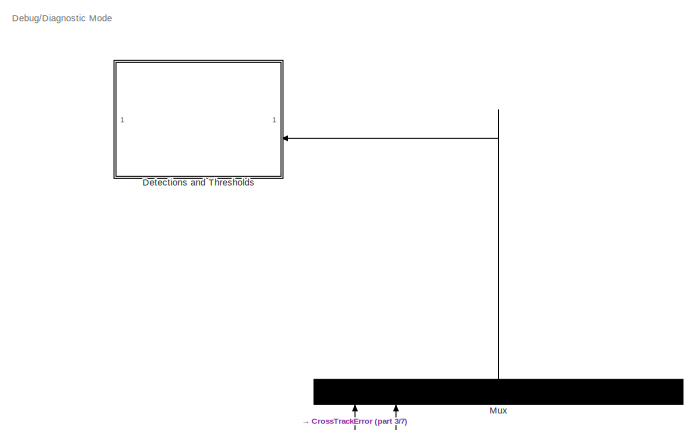
[diagram: root canvas - part 1/7, top right region]
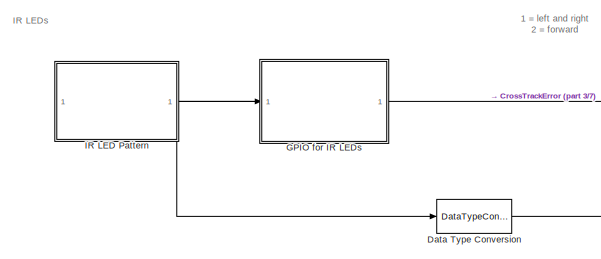
[diagram: root canvas - part 2/7, top center region]
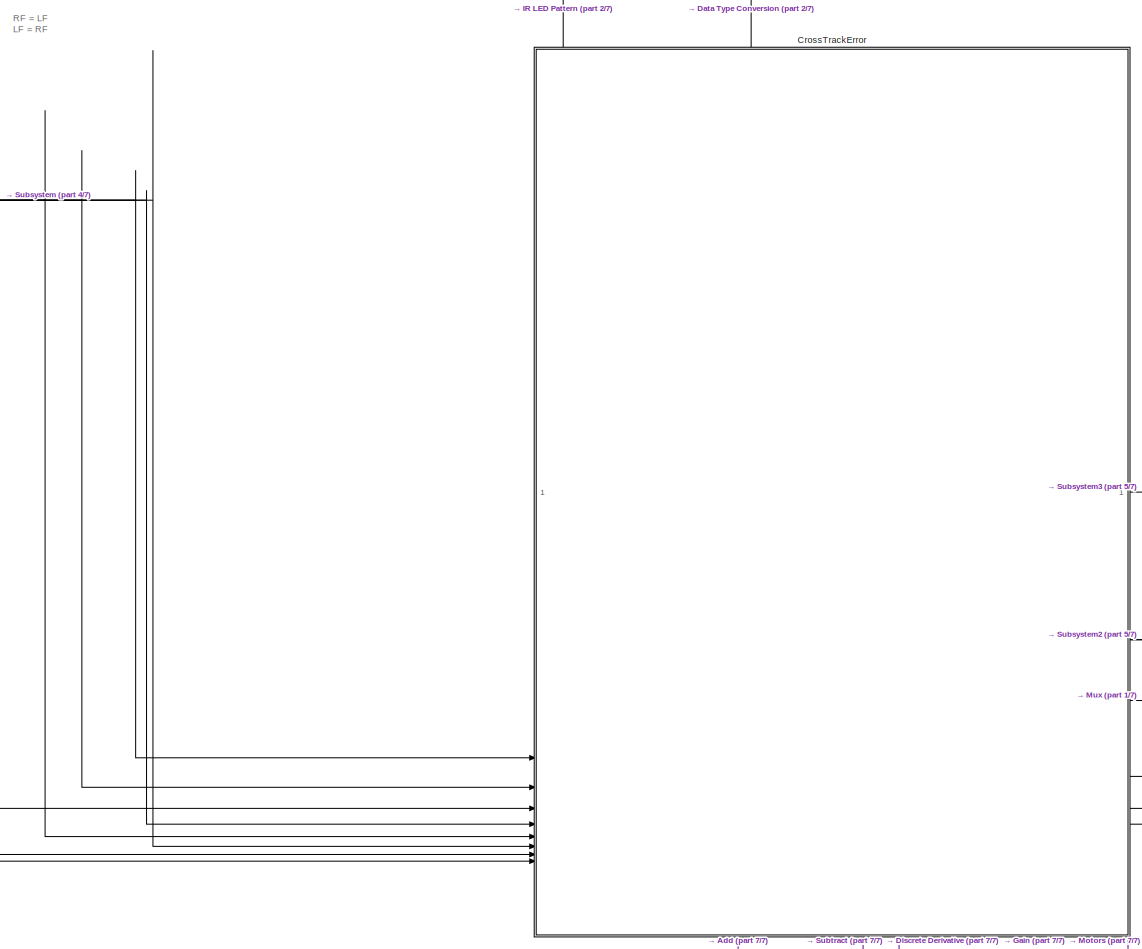
[diagram: root canvas - part 3/7, middle right region]
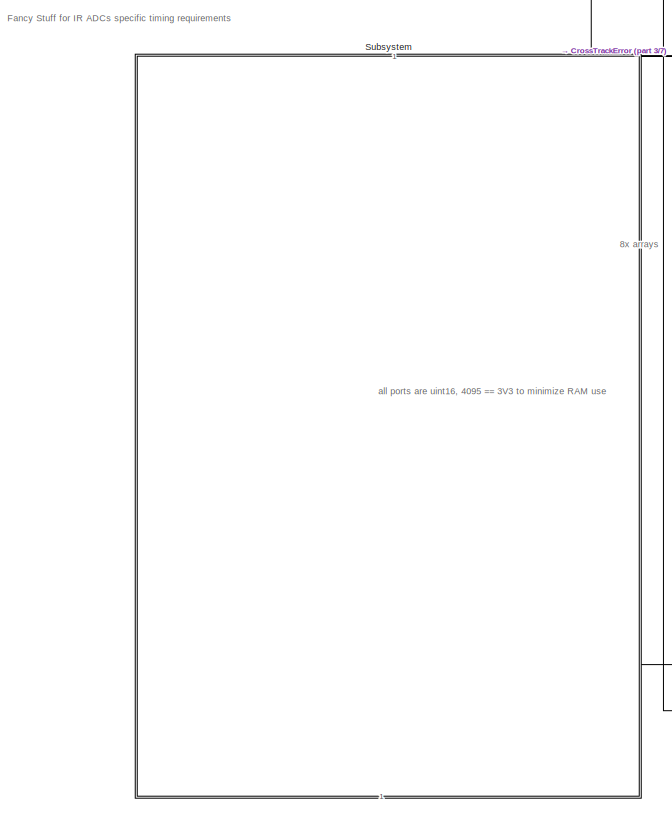
[diagram: root canvas - part 4/7, central region]
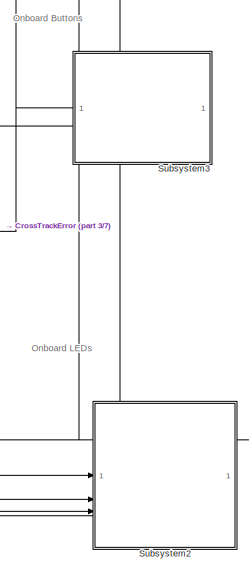
[diagram: root canvas - part 5/7, middle right region]
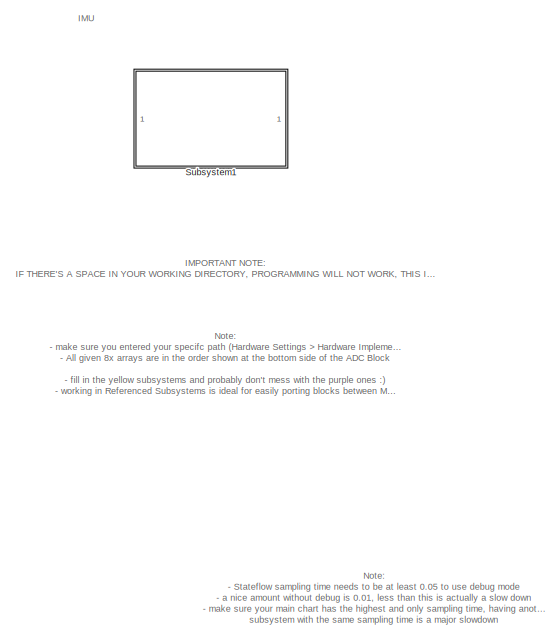
[diagram: root canvas - part 6/7, bottom left region]
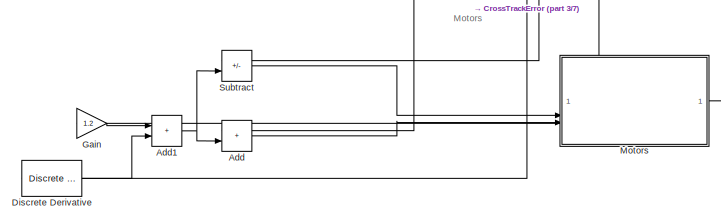
[diagram: root canvas - part 7/7, bottom right region]
MODEL slx_ac615706ee0f
KIND model
CONFIG AbsTol = auto
CONFIG EnableMultiTasking = on
CONFIG FixedStep = auto
CONFIG MaxStep = auto
CONFIG MinStep = auto
CONFIG RelTol = 1e-3
CONFIG SampleTimeConstraint = Unconstrained
CONFIG SolverName = FixedStepAuto
CONFIG StartTime = 0.0
CONFIG StopTime = 1
BLOCK [Sum] Add
  IconShape = rectangular
BLOCK [Sum] Add1
  IconShape = rectangular
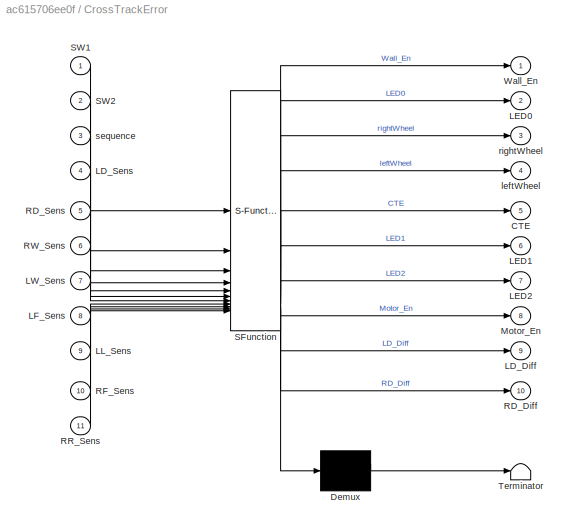
BLOCK [SubSystem] CrossTrackError
  ErrorFcn = Stateflow.Translate.translate
  PermitHierarchicalResolution = ExplicitOnly
  PortSchema = {"entries":[{"content":{"sides":[{"content":{"connectorIds":["In9","In10","In11","In8","In6","In5","In4","In7"]},"type":"ConnectorPlacement.EquallySpacedRectSide","uuid":"795ea1b7-921f-42f3-b63d-1e0fccd103e5"},{"content":{"connectorIds":["In1","In2","Out2","Out6","Out7"],"side":"RIGHT"},"type":"ConnectorPlacement.EquallySpacedRectSide","uuid":"448275bb-5ec0-437a-85f9-7eb442edc8cf"},{"content":{"co...<+508ch>
  SFBlockType = Chart
  TreatAsAtomicUnit = on
BLOCK [Demux] CrossTrackError/ Demux 
  Outputs = 1
BLOCK [S-Function] CrossTrackError/ SFunction 
  EnableBusSupport = on
  FunctionName = sf_sfun
  PortCounts = [11 11]
  SFcnIsStateOwnerBlock = off
  SFunctionDeploymentMode = off
  Tag = Stateflow S-Function 3
BLOCK [Terminator] CrossTrackError/ Terminator 
BLOCK [Outport] CrossTrackError/CTE
  Port = 5
BLOCK [Outport] CrossTrackError/LD_Diff
  Port = 9
BLOCK [Inport] CrossTrackError/LD_Sens
  Port = 4
BLOCK [Outport] CrossTrackError/LED0
  Port = 2
BLOCK [Outport] CrossTrackError/LED1
  Port = 6
BLOCK [Outport] CrossTrackError/LED2
  Port = 7
BLOCK [Inport] CrossTrackError/LF_Sens
  Port = 8
BLOCK [Inport] CrossTrackError/LL_Sens
  Port = 9
BLOCK [Inport] CrossTrackError/LW_Sens
  Port = 7
BLOCK [Outport] CrossTrackError/Motor_En
  Port = 8
BLOCK [Outport] CrossTrackError/RD_Diff
  Port = 10
BLOCK [Inport] CrossTrackError/RD_Sens
  Port = 5
BLOCK [Inport] CrossTrackError/RF_Sens
  Port = 10
BLOCK [Inport] CrossTrackError/RR_Sens
  Port = 11
BLOCK [Inport] CrossTrackError/RW_Sens
  Port = 6
BLOCK [Inport] CrossTrackError/SW1
BLOCK [Inport] CrossTrackError/SW2
  Port = 2
BLOCK [Outport] CrossTrackError/Wall_En
BLOCK [Outport] CrossTrackError/leftWheel
  Port = 4
BLOCK [Outport] CrossTrackError/rightWheel
  Port = 3
BLOCK [Inport] CrossTrackError/sequence
  Port = 3
BLOCK [DataTypeConversion] Data Type Conversion
  NameLocation = right
  OutDataTypeStr = uint16
  RndMeth = Floor
  SaturateOnIntegerOverflow = off
BLOCK [SubSystem] Detections and Thresholds
  NameLocation = top
  ReferencedSubsystem = DiagnosticMode
BLOCK [Reference] Discrete Derivative  REF=simulink/Discrete/Discrete Derivative
  SourceBlock = simulink/Discrete/Discrete Derivative
  SourceType = Discrete Derivative
BLOCK [SubSystem] GPIO for IR LEDs
  ReferencedSubsystem = IR_LEDs
  SystemSampleTime = samplingTime
  TreatAsAtomicUnit = on
BLOCK [Gain] Gain
  Gain = 1.2
BLOCK [SubSystem] IR LED Pattern
  PortSchema = {"entries":[{"content":{"sides":[{"content":{},"type":"ConnectorPlacement.EquallySpacedRectSide","uuid":"1931e4c4-32b2-4a94-ac5b-d8b29cb6844d"},{"content":{"connectorIds":["Out2"],"side":"RIGHT"},"type":"ConnectorPlacement.EquallySpacedRectSide","uuid":"11c8bedc-3803-4580-8c7a-c31be40dc07b"},{"content":{"side":"TOP"},"type":"ConnectorPlacement.EquallySpacedRectSide","uuid":"81b43062-94c0-4fa2-92f1...<+356ch>
  ReferencedSubsystem = IR_LED_Pattern
BLOCK [SubSystem] Motors
  PortSchema = {"entries":[{"content":{"sides":[{"content":{"connectorIds":["In2","In3"]},"type":"ConnectorPlacement.EquallySpacedRectSide","uuid":"524d3d59-9c7b-4144-8d0e-19eaf862ffe8"},{"content":{"connectorIds":["In1"],"side":"RIGHT"},"type":"ConnectorPlacement.EquallySpacedRectSide","uuid":"124526cf-9c70-4cc1-bf01-8ec9c9325922"},{"content":{"side":"TOP"},"type":"ConnectorPlacement.EquallySpacedRectSide","uui...<+227ch>
  ReferencedSubsystem = Motors
BLOCK [Mux] Mux
  DisplayOption = bar
  Inputs = 8
  NameLocation = right
BLOCK [SubSystem] Subsystem
  NameLocation = top
  PortSchema = {"entries":[{"content":{"sides":[{"content":{"connectorIds":["Out9"]},"type":"ConnectorPlacement.EquallySpacedRectSide","uuid":"be6b81d5-7a49-4e34-b35f-0c07892094fc"},{"content":{"connectorIds":["Out11"],"side":"RIGHT"},"type":"ConnectorPlacement.EquallySpacedRectSide","uuid":"5e22590a-b7c0-4c63-8de4-8d81fd6c3849"},{"content":{"connectorIds":["Out12","Out10"],"side":"TOP"},"type":"ConnectorPlaceme...<+456ch>
  ReferencedSubsystem = ADC_Block
BLOCK [SubSystem] Subsystem1
  ReferencedSubsystem = IMU
BLOCK [SubSystem] Subsystem2
  ReferencedSubsystem = LEDs
BLOCK [SubSystem] Subsystem3
  NameLocation = top
  ReferencedSubsystem = SWs
BLOCK [Sum] Subtract
  IconShape = rectangular
  Inputs = +-
ANNOTATION (root): 1 = left and right 2 = forward
ANNOTATION (root): 8x arrays
ANNOTATION (root): IMPORTANT NOTE: IF THERE'S A SPACE IN YOUR WORKING DIRECTORY, PROGRAMMING WILL NOT WORK, THIS INCLUDES A SPACE IN YOUR PC's USERNAME (Space is an argument delimiter for terminal things)
ANNOTATION (root): Note: - Stateflow sampling time needs to be at least 0.05 to use debug mode - a nice amount without debug is 0.01, less than this is actually a slow down - make sure your main chart has the highest and only sampling time, having another subsystem with the same sampling time is a major slowdown
ANNOTATION (root): Debug/Diagnostic Mode
ANNOTATION (root): Fancy Stuff for IR ADCs specific timing requirements
ANNOTATION (root): IMU
ANNOTATION (root): IR LEDs
ANNOTATION (root): Motors
ANNOTATION (root): Note: - make sure you entered your specifc path (Hardware Settings > Hardware Implementation) to the given MicroMouseProgramming.ioc - All given 8x arrays are in the order shown at the bottom side of the ADC Block - fill in the yellow subsystems and probably don't mess with the purple ones :) - working in Referenced Subsystems is ideal for easily porting blocks between MATLAB instances, and openin...<+127ch>
ANNOTATION (root): Onboard Buttons
ANNOTATION (root): Onboard LEDs
ANNOTATION (root): RF = LF LF = RF
ANNOTATION (root): all ports are uint16, 4095 == 3V3 to minimize RAM use
NET Add1:1 -> Add:2, Subtract:2
LINE Add:1 -> Motors:3
LINE CrossTrackError:1 -> IR LED Pattern:1
LINE CrossTrackError:10 -> Mux:1
LINE CrossTrackError:2 -> Subsystem2:1
LINE CrossTrackError:3 -> Subtract:1
LINE CrossTrackError:4 -> Add:1
NET CrossTrackError:5 -> Discrete Derivative:1, Gain:1
LINE CrossTrackError:6 -> Subsystem2:2
LINE CrossTrackError:7 -> Subsystem2:3
LINE CrossTrackError:8 -> Motors:1
LINE CrossTrackError:9 -> Mux:2
LINE Data Type Conversion:1 -> CrossTrackError:3
LINE Discrete Derivative:1 -> Add1:2
LINE Gain:1 -> Add1:1
LINE IR LED Pattern:1 -> Data Type Conversion:1
LINE IR LED Pattern:2 -> GPIO for IR LEDs:1
LINE Mux:1 -> Detections and Thresholds:2
LINE Subsystem3:1 -> CrossTrackError:1
LINE Subsystem3:2 -> CrossTrackError:2
LINE Subsystem:1 -> CrossTrackError:6
LINE Subsystem:2 -> CrossTrackError:8
LINE Subsystem:3 -> CrossTrackError:5
LINE Subsystem:4 -> CrossTrackError:9
LINE Subsystem:5 -> CrossTrackError:11
LINE Subsystem:6 -> CrossTrackError:4
LINE Subsystem:7 -> CrossTrackError:10
LINE Subsystem:8 -> CrossTrackError:7
LINE Subtract:1 -> Motors:2
note: NET lines group one-source signal fan-out (src -> all destinations, sorted); 1:1 wires keep LINE
CHART CrossTrackError states=31 transitions=41
  STATE_LABEL 'One\nentry:\n%%%%%%%%\nleftWheel = 0;\nrightWheel = 0;\nMotor_En = 1;\nWall_En = 0;\n%%%%%%%%\nleft_Min = 1000;\nleft_Max = 0;\nright_Min = 1000;\nright_Max = 0;\n%%%%%%%%\nRD_Diff = 175;\nLD_Diff = 175;\nLW_Diff = 3000;\nRW_Diff = 3000;\n%%%%%%%%\nLF_Diff = 0;\nRF_Diff = 0;\nLL_Diff = 0;\nRR_Diff = 0;\n%%%%%%%\n%%%%%%%\nLD_On = 0;\nRD_On = 0;\nRW_On = 0;\nLW_On = 0;\n%%%%%%%\nLD_Off = 0;\nRD_Off = 0;\nRW_Off = 0;\nLW_Off = 0;\n%...<+2317ch>'
  STATE_LABEL 'Startr\nentry:\nfinished = false;\nduring:\n    %pop first element\n    positionPointer = [queue(1,1), queue(2,1)];\n    value = maze((16 -  (positionPointer(2)*2)), (positionPointer(1)*2));\n    queue(:, 1:end-1) = queue(:, 2:end);  % Shift columns to the left\n    queue(:, end) = NaN;  % Fill the last column with NaN\n    endPosition = endPosition - 1;\n    leftWallPosition = [positionPointer(1)*2 - 1, (1...<+2026ch>'
  STATE_LABEL 'Wait\nentry:\ndisp(maze);\nstop_counter = 0;\ndetect = 0;\nLED0 = 0;\nduring:\n%%%%%%%%%%%%%%%%%%\n%%%%%%%%%%%%%%%%%%\nif sequence == 1\n    LD_Off = LD_Sens;\n    RD_Off = RD_Sens;\n    LW_Off = LW_Sens;\n    RW_Off = RW_Sens;\nend\n%%%%%%%%%%%%%%%%%%%%\nif sequence == 2\n    LD_On = LD_Sens;\nend\n%%%%%%%%%%%%%%%%%%%%\nif sequence == 3\n    RD_On = RD_Sens;\nend\n%%%%%%%%%%%%%%%%%%%%\nif sequence == 0\n    LW_On = LW_Se...<+423ch>'
  STATE_LABEL 'resetWheel\nentry:\nrightWheel = 0;\nleftWheel = 0;'
  STATE_LABEL 'WallDetect\nentry:\nleftWheel = 0;\nrightWheel = 0;\nloop = 0;\nLL_Min = 4000;\nLL_Max = 0;\nRR_Min = 4000;\nRR_Max = 0;\nLF_Min = 4000;\nLF_Max = 0;\nRF_Min = 4000;\nRF_Max = 0;\nduring:\n%%%%%%%%%%%\nLL_Max = max(LL_Sens, LL_Max);\nRR_Max = max(RR_Sens, RR_Max);\nLL_Min = min(LL_Sens, LL_Min);\nRR_Min = min(RR_Sens, RR_Min);\nLF_Max = max(LF_Sens, LF_Max);\nRF_Max = max(RF_Sens, RF_Max);\nLF_Min = min(LF_Sens, LF_Mi...<+51ch>'
  STATE_LABEL 'CrossOver\nentry:\nleftWheel = -70;\nrightWheel = -50;\nWall_En = 1;\n'
  STATE_LABEL 'ShouldIChangeAWall\nentry:\nCTE = 0;\nCTE2 = 0;\ngoToWall = 0;\nchangeEast = false;\nchangeWest = false;\nchangeNorth = false;\nchangeSouth = false;\nif maze(16 - currentPosition(2) * 2, currentPosition(1) * 2 - 1) == -1 % W\n    changeWest = true;\n    goToWall = 1;\nend\nif maze(16 - currentPosition(2) * 2, currentPosition(1) * 2 + 1) == -1 % E\n    changeEast = true;\n    goToWall = 1;\nend\nif maze(16 - (curre...<+227ch>'
  STATE_LABEL 'Wai\nentry:\nLED0 = 1;\nLED1 = 1;\nLED2 = 1;\n'
  STATE_LABEL 'WallSensed\nentry:\nleftWheel = 0;\nrightWheel = 0;\n'
  STATE_LABEL 'UpdateWalls\nentry:\nright = 0;\nleft = 0;\nfront = 0;\nWall_En = 0;\nLED0 = 0;\nLED1 = 0;\nLED2 = 0;\nLL_Diff = LL_Max - LL_Min;\nRR_Diff = RR_Max - RR_Min;\nLF_Diff = LF_Max - LF_Min;\nRF_Diff = RF_Max - RF_Min;\nif LL_Diff > LL_Threshold\n    left = 1;\n    LED0 = 1;\nend\nif RR_Diff > RR_Threshold\n    right = 1;\n    LED2 = 1;\nend\nif LF_Diff > LF_Threshold\n    front = 1;\n    LED1 = 1;\nend\n% Update maze based on...<+1509ch>'
  STATE_LABEL 'getVals\nentry:\nleftWheel = speed;\nrightWheel = speed;\nstop_counter = 0;\ndetect = 0;\nduring:\n%%%%%%%%%%%%%%%%%%\n%%%%%%%%%%%%%%%%%%\nif sequence == 1\n    LD_Off = LD_Sens;\n    RD_Off = RD_Sens;\n    LW_Off = LW_Sens;\n    RW_Off = RW_Sens;\nend\n%%%%%%%%%%%%%%%%%%%%\nif sequence == 2\n    LD_On = LD_Sens;\nend\n%%%%%%%%%%%%%%%%%%%%\nif sequence == 3\n    RD_On = RD_Sens;\nend\n%%%%%%%%%%%%%%%%%%%%\nif sequence ==...<+651ch>'
  STATE_LABEL 'WallDetect1\nentry:\nleftWheel = 0;\nrightWheel = 0;\nloop = 0;\nLL_Min = 4000;\nLL_Max = 0;\nRR_Min = 4000;\nRR_Max = 0;\nLF_Min = 4000;\nLF_Max = 0;\nRF_Min = 4000;\nRF_Max = 0;\nduring:\n%%%%%%%%%%%\nLL_Max = max(LL_Sens, LL_Max);\nRR_Max = max(RR_Sens, RR_Max);\nLL_Min = min(LL_Sens, LL_Min);\nRR_Min = min(RR_Sens, RR_Min);\nLF_Max = max(LF_Sens, LF_Max);\nRF_Max = max(RF_Sens, RF_Max);\nLF_Min = min(LF_Sens, LF_M...<+52ch>'
  STATE_LABEL 'flash\nentry:\nLED0 = 0;\nLED1 = 1;'
  STATE_LABEL 'MakeTurnDecision\nentry:\nvalueMin = maze(16 -  currentPosition(2)*2, currentPosition(1)*2);\n%Walls\neastWall = maze(16 -  currentPosition(2)*2, currentPosition(1)*2+1);\nwestWall = maze(16 -  currentPosition(2)*2, currentPosition(1)*2-1);\nsouthWall = maze(16 -  (currentPosition(2)*2 - 1), currentPosition(1)*2);\nnorthWall = maze(16 -  (currentPosition(2)*2 + 1), currentPosition(1)*2);\n%cells\nif eastWa...<+2312ch>'
  STATE_LABEL 'BigYIPEE\nentry:\nleftWheel = -95;\nrightWheel = 95;\nduring:\nLED0 = 1;\nLED2 = 0;'
  STATE_LABEL 'TurnBAckCalibration\nentry:\nrightWheel = -100;\nleftWheel = 100;'
  STATE_LABEL 'bluh\nentry:\nLED1 = 0;\nLED2 = 1;'
  STATE_LABEL 'WallCalibration\nentry:\nWall_Cal=0;\nLF_Threshold =0.7 * double(LF_Max-LF_Min);\nRR_Threshold = 0.85 *  double(RR_Max-RR_Min);\nLL_Threshold = 0.75 * double(LL_Max-LL_Min);\n%%%%%%%%%%%%%%%%\nrightWheel = -100;\nleftWheel = 100;\n'
  STATE_LABEL 'YippeEnator\nentry:\nYIPEE = YIPEE +1;'
  STATE_LABEL 'Yipee\nentry:\ngoalPosition = [5, 5];\nrightWheel = 0;\nleftWheel = 0;\nspeed = 100;'
  STATE_LABEL 'ResetGoal\nentry:\ngoalPosition = [1, 1];\nrightWheel = 0;\nleftWheel = 0;\n'
  STATE_LABEL 'TurnBackCal\nentry:\nleftWheel=0;\nrightWheel=0;\n'
  STATE_LABEL 'waitForSpeed\nentry:\ndirection = 0;'
  STATE_LABEL 'ResetMaze\nentry:\nfor i= 2:2:14\n    for j= 2:2:14\n        maze(i, j) = 100;\n    end\nend\nmaze((16 -  (goalPosition(2)*2)), (goalPosition(1)*2)) = 0;\nqueue = NaN(2, 50);\nendPosition = 1;\nqueue(1, 1) = goalPosition(1);\nqueue(2, 1) = goalPosition(2);\nendPosition = 2;\n'
  STATE_LABEL 'Startr1\nentry:\nfinished = false;\nduring:\n    %pop first element\n    positionPointer = [queue(1,1), queue(2,1)];\n    value = maze((16 -  (positionPointer(2)*2)), (positionPointer(1)*2));\n    queue(:, 1:end-1) = queue(:, 2:end);  % Shift columns to the left\n    queue(:, end) = NaN;  % Fill the last column with NaN\n    endPosition = endPosition - 1;\n    leftWallPosition = [positionPointer(1)*2 - 1, (...<+2027ch>'
  STATE_LABEL 'TurnLeft\nentry:\nrightWheel = 100;\nleftWheel = -77;\n'
  STATE_LABEL 'TurnRight\nentry:\nrightWheel = -78;\nleftWheel = 100;\n'
  STATE_LABEL 'Straight\nentry:\nrightWheel = speed;\nleftWheel = speed;'
  STATE_LABEL 'TurnBack\nentry:\nrightWheel = -100;\nleftWheel = 100;'
  STATE_LABEL 'the\nentry:\nrightWheel = speed;\nleftWheel = speed;\n'
  STATE_LABEL 'wallOn\nentry:\nWall_En = 0;\n'
  STATE_LABEL '[SW1]'
  STATE_LABEL '[stop_counter > 500]'
  STATE_LABEL '[(Wall_Cal==1)&&(after(0.2, sec)) ]'
  STATE_LABEL '[after(0.2, sec)&&(Wall_Cal == 0)]'
  STATE_LABEL '[after(0.02, sec)]'
  STATE_LABEL '[goToWall ==1]'
  STATE_LABEL '[Cal_Counter==0]{Cal_Counter=Cal_Counter+1}'
  STATE_LABEL '[Cal_Counter==1]'
  STATE_LABEL '[SW1]'
CHART  states=0 transitions=0
